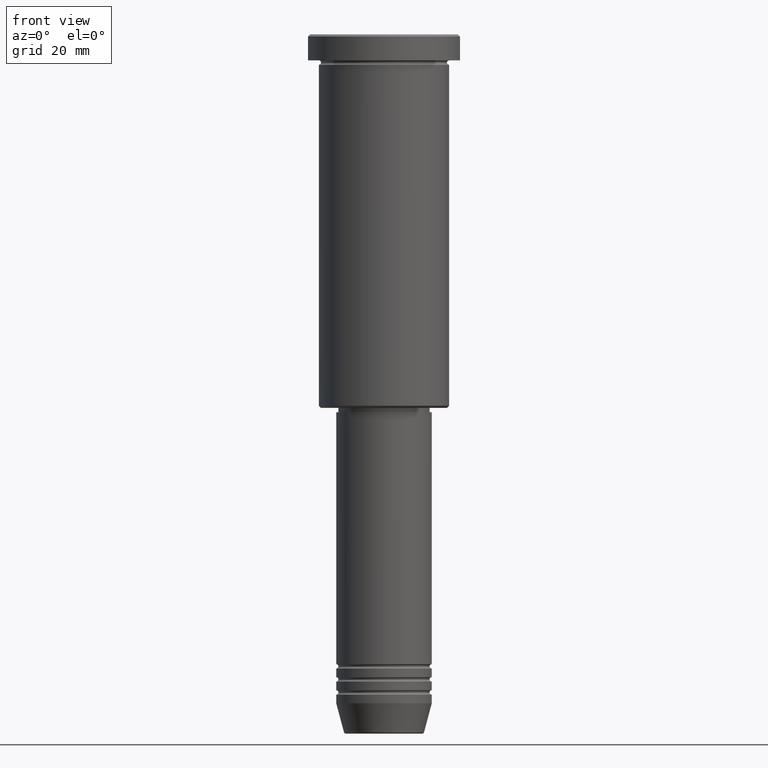
[diagram: clean part render]
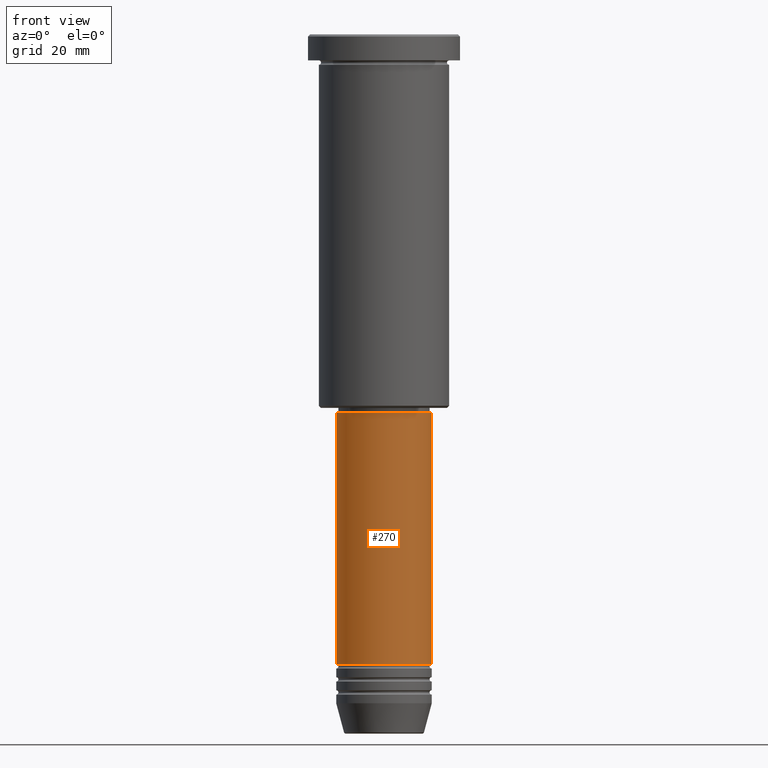
[diagram: same view with one face highlighted and labeled with its STEP entity id]
A machine part, front view. The second image highlights one B-rep face of the part: STEP entity #270.
In plain terms, the highlighted cylindrical surface (partial cylindrical patch) has radius 11 mm, axis along (-0, -0, 1).
Its self-contained STEP definition (entity closure, byte-faithful):
#45 = LINE ( 'NONE', #334, #936 ) ;
#88 = DIRECTION ( 'NONE',  ( -0.000000000000000000, -0.000000000000000000, 1.000000000000000000 ) ) ;
#89 = CARTESIAN_POINT ( 'NONE',  ( 0.000000000000000000, 0.000000000000000000, -87.00000000000000000 ) ) ;
#100 = ORIENTED_EDGE ( 'NONE', *, *, #833, .T. ) ;
#119 = AXIS2_PLACEMENT_3D ( 'NONE', #89, #544, #619 ) ;
#123 = CIRCLE ( 'NONE', #401, 11.00000000000000000 ) ;
#270 = ADVANCED_FACE ( 'NONE', ( #871 ), #797, .T. ) ;
#272 = VERTEX_POINT ( 'NONE', #409 ) ;
#334 = CARTESIAN_POINT ( 'NONE',  ( -11.00000000000000000, 1.347111479062088405E-15, 0.000000000000000000 ) ) ;
#401 = AXIS2_PLACEMENT_3D ( 'NONE', #476, #942, #843 ) ;
#409 = CARTESIAN_POINT ( 'NONE',  ( 11.00000000000000000, 0.000000000000000000, -144.9999999999999716 ) ) ;
#476 = CARTESIAN_POINT ( 'NONE',  ( 0.000000000000000000, 0.000000000000000000, -144.9999999999999716 ) ) ;
#503 = EDGE_CURVE ( 'NONE', #1119, #964, #631, .T. ) ;
#525 = CARTESIAN_POINT ( 'NONE',  ( -11.00000000000000000, 1.347111479062088405E-15, -87.00000000000000000 ) ) ;
#527 = AXIS2_PLACEMENT_3D ( 'NONE', #962, #975, #956 ) ;
#544 = DIRECTION ( 'NONE',  ( -0.000000000000000000, -0.000000000000000000, 1.000000000000000000 ) ) ;
#588 = DIRECTION ( 'NONE',  ( -0.000000000000000000, -0.000000000000000000, 1.000000000000000000 ) ) ;
#619 = DIRECTION ( 'NONE',  ( 1.000000000000000000, 0.000000000000000000, 0.000000000000000000 ) ) ;
#631 = CIRCLE ( 'NONE', #119, 11.00000000000000000 ) ;
#667 = CARTESIAN_POINT ( 'NONE',  ( -11.00000000000000000, 1.347111479062088405E-15, -144.9999999999999716 ) ) ;
#709 = EDGE_CURVE ( 'NONE', #1003, #1119, #45, .T. ) ;
#771 = LINE ( 'NONE', #927, #972 ) ;
#797 = CYLINDRICAL_SURFACE ( 'NONE', #527, 11.00000000000000000 ) ;
#833 = EDGE_CURVE ( 'NONE', #272, #964, #771, .T. ) ;
#843 = DIRECTION ( 'NONE',  ( 1.000000000000000000, 0.000000000000000000, 0.000000000000000000 ) ) ;
#871 = FACE_OUTER_BOUND ( 'NONE', #1151, .T. ) ;
#927 = CARTESIAN_POINT ( 'NONE',  ( 11.00000000000000000, 0.000000000000000000, 0.000000000000000000 ) ) ;
#936 = VECTOR ( 'NONE', #588, 1000.000000000000000 ) ;
#942 = DIRECTION ( 'NONE',  ( -0.000000000000000000, -0.000000000000000000, 1.000000000000000000 ) ) ;
#951 = CARTESIAN_POINT ( 'NONE',  ( 11.00000000000000000, 0.000000000000000000, -87.00000000000000000 ) ) ;
#956 = DIRECTION ( 'NONE',  ( 1.000000000000000000, 0.000000000000000000, 0.000000000000000000 ) ) ;
#962 = CARTESIAN_POINT ( 'NONE',  ( 0.000000000000000000, 0.000000000000000000, 0.000000000000000000 ) ) ;
#964 = VERTEX_POINT ( 'NONE', #951 ) ;
#968 = EDGE_CURVE ( 'NONE', #1003, #272, #123, .T. ) ;
#972 = VECTOR ( 'NONE', #88, 1000.000000000000000 ) ;
#975 = DIRECTION ( 'NONE',  ( -0.000000000000000000, -0.000000000000000000, 1.000000000000000000 ) ) ;
#1003 = VERTEX_POINT ( 'NONE', #667 ) ;
#1053 = ORIENTED_EDGE ( 'NONE', *, *, #968, .T. ) ;
#1104 = ORIENTED_EDGE ( 'NONE', *, *, #503, .F. ) ;
#1119 = VERTEX_POINT ( 'NONE', #525 ) ;
#1151 = EDGE_LOOP ( 'NONE', ( #1181, #1053, #100, #1104 ) ) ;
#1181 = ORIENTED_EDGE ( 'NONE', *, *, #709, .F. ) ;